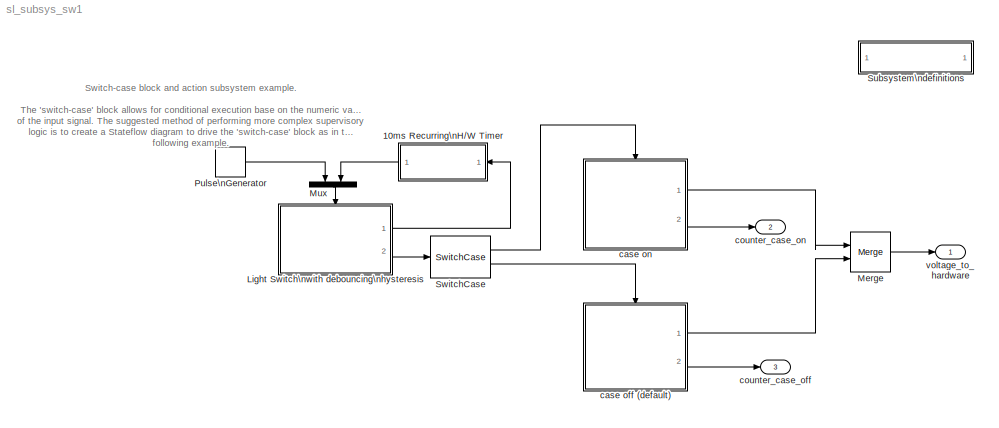
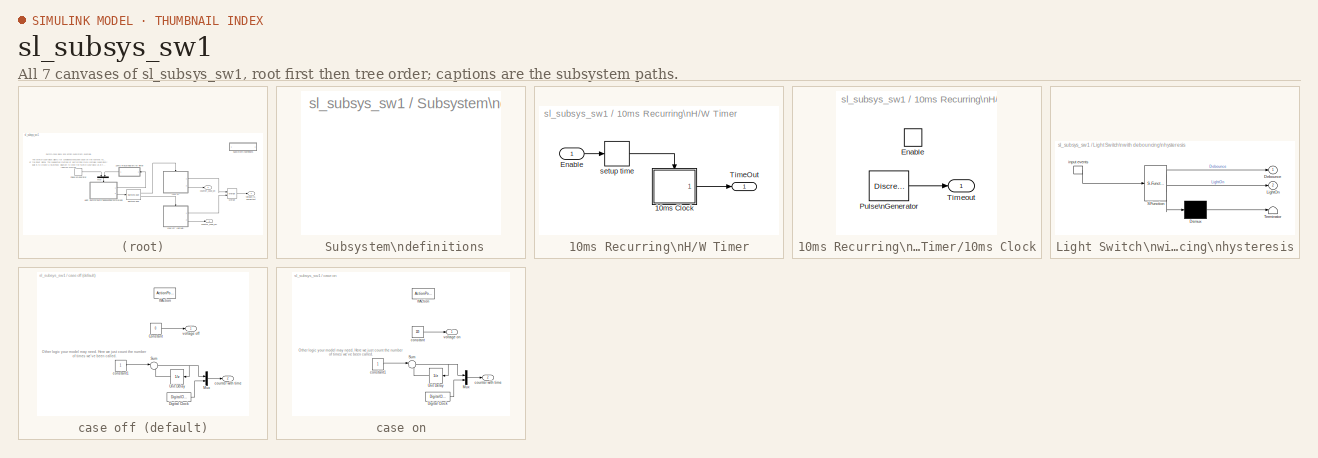
[diagram: thumbnail index - all 7 canvases of the model, root first then tree order]
MODEL sl_subsys_sw1
KIND model
BLOCK [SubSystem]  Subsystem\ndefinitions
  MaskDisplay = disp('Subsystem\\ndefinitions')\n\n
  MaskIconFrame = on
  MaskIconOpaque = on
  MaskIconRotate = none
  MaskIconUnits = autoscale
  MinAlgLoopOccurrences = off
  OpenFcn = helpview([matlabroot,'/toolbox/simulink/simdemos/sl_subsys_definitions.html']);
  Ports = []
  PropExecContextAcrossSSBoundary = on
  RTWSystemCode = Auto
  TreatAsAtomicUnit = off
BLOCK [SubSystem] 10ms Recurring\nH//W Timer
  MinAlgLoopOccurrences = off
  Ports = [1, 1]
  PropExecContextAcrossSSBoundary = on
  RTWSystemCode = Auto
  TreatAsAtomicUnit = off
BLOCK [SubSystem] 10ms Recurring\nH//W Timer/10ms Clock
  MinAlgLoopOccurrences = off
  Ports = [0, 1, 1]
  PropExecContextAcrossSSBoundary = on
  RTWSystemCode = Auto
  TreatAsAtomicUnit = on
BLOCK [EnablePort] 10ms Recurring\nH//W Timer/10ms Clock/Enable
  Ports = []
  StatesWhenEnabling = reset
BLOCK [DiscretePulseGenerator] 10ms Recurring\nH//W Timer/10ms Clock/Pulse\nGenerator
  Amplitude = -1
  Period = 10
  Ports = [0, 1]
  PulseWidth = 5
BLOCK [Outport] 10ms Recurring\nH//W Timer/10ms Clock/Timeout
  IconDisplay = Port number
  InitialOutput = 0
  OutputWhenDisabled = reset
BLOCK [Inport] 10ms Recurring\nH//W Timer/Enable
  IconDisplay = Port number
  LatchInput = off
  Port = 1
BLOCK [Outport] 10ms Recurring\nH//W Timer/TimeOut
  IconDisplay = Port number
BLOCK [Memory] 10ms Recurring\nH//W Timer/setup time
  InheritSampleTime = on
BLOCK [SubSystem] Light Switch\nwith debouncing\nhysteresis
  MaskDescription = Stateflow diagram
  MaskDisplay = plot(sf('Private','sfblk','xIcon'),sf('Private','sfblk','yIcon'));text(0.5,0,sf('Private', 'sfblk', 'tIcon'),'HorizontalAl','Center','VerticalAl','Bottom');
  MaskIconFrame = off
  MaskIconOpaque = off
  MaskIconRotate = none
  MaskIconUnits = autoscale
  MaskSelfModifiable = on
  MaskType = Stateflow
  MinAlgLoopOccurrences = off
  Ports = [0, 2, 0, 1]
  PropExecContextAcrossSSBoundary = on
  RTWSystemCode = Auto
  TreatAsAtomicUnit = on
BLOCK [Demux] Light Switch\nwith debouncing\nhysteresis/ Demux 
  Outputs = 1
  Ports = [1, 1]
BLOCK [S-Function] Light Switch\nwith debouncing\nhysteresis/ SFunction 
  FunctionName = sf_sfun
  PortCounts = [1 3]
  Ports = [1, 3]
  Tag = Stateflow S-Function sl_subsys_sw1 1
BLOCK [Terminator] Light Switch\nwith debouncing\nhysteresis/ Terminator 
BLOCK [TriggerPort] Light Switch\nwith debouncing\nhysteresis/ input events 
  Ports = [0, 1]
  ShowOutputPort = on
BLOCK [Outport] Light Switch\nwith debouncing\nhysteresis/Debounce
  IconDisplay = Port number
BLOCK [Outport] Light Switch\nwith debouncing\nhysteresis/LightOn
  IconDisplay = Port number
  Port = 2
BLOCK [Merge] Merge
  Ports = [2, 1]
BLOCK [Mux] Mux
  DisplayOption = bar
  Inputs = 2
  Ports = [2, 1]
BLOCK [DiscretePulseGenerator] Pulse\nGenerator
  Period = [64]
  PhaseDelay = 1
  Ports = [0, 1]
  PulseWidth = [1]
BLOCK [SwitchCase] SwitchCase
  Ports = [1, 2]
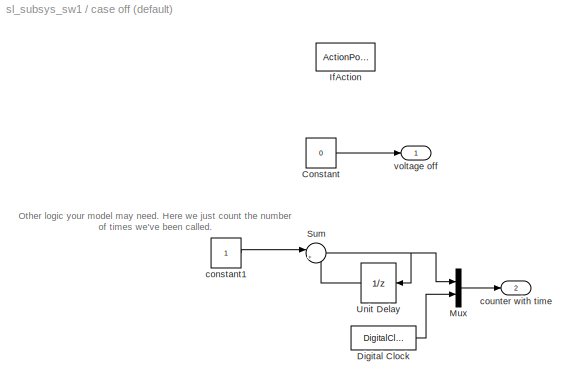
BLOCK [SubSystem] case off (default)
  MinAlgLoopOccurrences = off
  Ports = [0, 2, 0, 0, 0, 0, 0, 1]
  PropExecContextAcrossSSBoundary = on
  RTWSystemCode = Auto
  TreatAsAtomicUnit = on
BLOCK [Constant] case off (default)/Constant
  Value = 0
BLOCK [DigitalClock] case off (default)/Digital Clock
BLOCK [ActionPort] case off (default)/IfAction
  ActionType = default
BLOCK [Mux] case off (default)/Mux
  DisplayOption = bar
  Inputs = 2
  Ports = [2, 1]
BLOCK [Sum] case off (default)/Sum
  IconShape = round
  Inputs = |++
  Ports = [2, 1]
BLOCK [UnitDelay] case off (default)/Unit Delay
BLOCK [Constant] case off (default)/constant1
BLOCK [Outport] case off (default)/counter with time
  IconDisplay = Port number
  Port = 2
BLOCK [Outport] case off (default)/voltage off
  IconDisplay = Port number
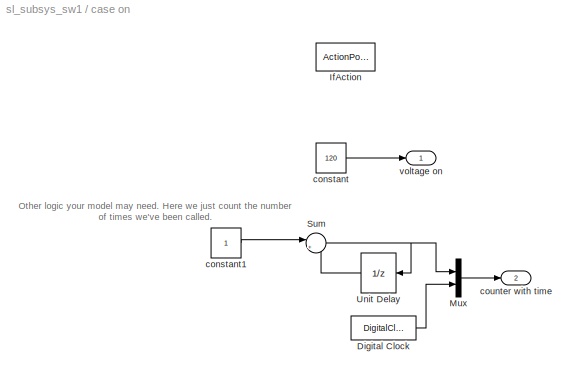
BLOCK [SubSystem] case on
  MinAlgLoopOccurrences = off
  Ports = [0, 2, 0, 0, 0, 0, 0, 1]
  PropExecContextAcrossSSBoundary = on
  RTWSystemCode = Auto
  TreatAsAtomicUnit = on
BLOCK [DigitalClock] case on/Digital Clock
BLOCK [ActionPort] case on/IfAction
  ActionType = case
BLOCK [Mux] case on/Mux
  DisplayOption = bar
  Inputs = 2
  Ports = [2, 1]
BLOCK [Sum] case on/Sum
  IconShape = round
  Inputs = |++
  Ports = [2, 1]
BLOCK [UnitDelay] case on/Unit Delay
BLOCK [Constant] case on/constant
  Value = 120
BLOCK [Constant] case on/constant1
BLOCK [Outport] case on/counter with time
  IconDisplay = Port number
  Port = 2
BLOCK [Outport] case on/voltage on
  IconDisplay = Port number
BLOCK [Outport] counter_case_off
  IconDisplay = Port number
  Port = 3
BLOCK [Outport] counter_case_on
  IconDisplay = Port number
  Port = 2
BLOCK [Outport] voltage_to_hardware
  IconDisplay = Port number
ANNOTATION (root): Switch-case block and action subsystem example.\n\nThe 'switch-case' block allows for conditional execution base on the numeric value\nof the input signal. The suggested method of performing more complex supervisory\nlogic is to create a Stateflow diagram to drive the 'switch-case' block as in the\nfollowing example.\n
ANNOTATION case off (default): Other logic your model may need. Here we just count the number\nof times we've been called.
ANNOTATION case on: Other logic your model may need. Here we just count the number\nof times we've been called.
LINE 10ms Recurring\nH//W Timer/10ms Clock/Pulse\nGenerator:1 -> 10ms Recurring\nH//W Timer/10ms Clock/Timeout:1
LINE 10ms Recurring\nH//W Timer/10ms Clock:1 -> 10ms Recurring\nH//W Timer/TimeOut:1
LINE 10ms Recurring\nH//W Timer/Enable:1 -> 10ms Recurring\nH//W Timer/setup time:1
LINE 10ms Recurring\nH//W Timer/setup time:1 -> 10ms Recurring\nH//W Timer/10ms Clock:enable
LINE 10ms Recurring\nH//W Timer:1 -> Mux:2
LINE Light Switch\nwith debouncing\nhysteresis/ Demux :1 -> Light Switch\nwith debouncing\nhysteresis/ Terminator :1
LINE Light Switch\nwith debouncing\nhysteresis/ SFunction :1 -> Light Switch\nwith debouncing\nhysteresis/ Demux :1
LINE Light Switch\nwith debouncing\nhysteresis/ SFunction :2 -> Light Switch\nwith debouncing\nhysteresis/Debounce:1
LINE Light Switch\nwith debouncing\nhysteresis/ SFunction :3 -> Light Switch\nwith debouncing\nhysteresis/LightOn:1
LINE Light Switch\nwith debouncing\nhysteresis/ input events :1 -> Light Switch\nwith debouncing\nhysteresis/ SFunction :1
LINE Light Switch\nwith debouncing\nhysteresis:1 -> 10ms Recurring\nH//W Timer:1
LINE Light Switch\nwith debouncing\nhysteresis:2 -> SwitchCase:1
LINE Merge:1 -> voltage_to_hardware:1
LINE Mux:1 -> Light Switch\nwith debouncing\nhysteresis:trigger
LINE Pulse\nGenerator:1 -> Mux:1
LINE SwitchCase:1 -> case on:ifaction
LINE SwitchCase:2 -> case off (default):ifaction
LINE case off (default)/Constant:1 -> case off (default)/voltage off:1
LINE case off (default)/Digital Clock:1 -> case off (default)/Mux:2
LINE case off (default)/Mux:1 -> case off (default)/counter with time:1
NET case off (default)/Sum:1 -> case off (default)/Mux:1, case off (default)/Unit Delay:1
LINE case off (default)/Unit Delay:1 -> case off (default)/Sum:2
LINE case off (default)/constant1:1 -> case off (default)/Sum:1
LINE case off (default):1 -> Merge:2
LINE case off (default):2 -> counter_case_off:1
LINE case on/Digital Clock:1 -> case on/Mux:2
LINE case on/Mux:1 -> case on/counter with time:1
NET case on/Sum:1 -> case on/Mux:1, case on/Unit Delay:1
LINE case on/Unit Delay:1 -> case on/Sum:2
LINE case on/constant1:1 -> case on/Sum:1
LINE case on/constant:1 -> case on/voltage on:1
LINE case on:1 -> Merge:1
LINE case on:2 -> counter_case_on:1
note: NET lines group one-source signal fan-out (src -> all destinations, sorted); 1:1 wires keep LINE
CHART Light Switch\nwith debouncing\nhysteresis states=5 transitions=7
  STATE_LABEL 'On\\nLightOn = 1;'
  STATE_LABEL 'Off\\nLightOn = 0;'
  STATE_LABEL 'Debounce'
  STATE_LABEL 'Off'
  STATE_LABEL 'On'
